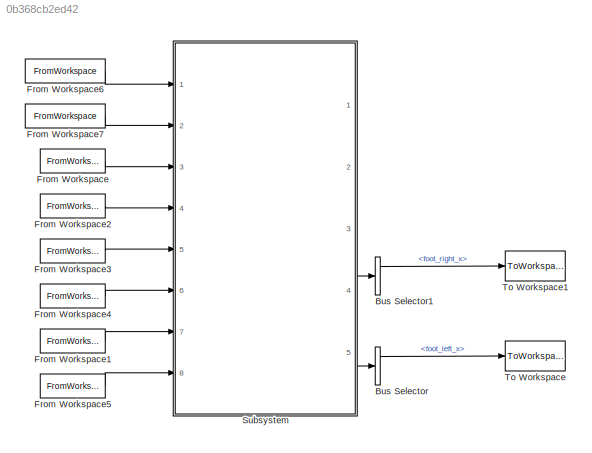
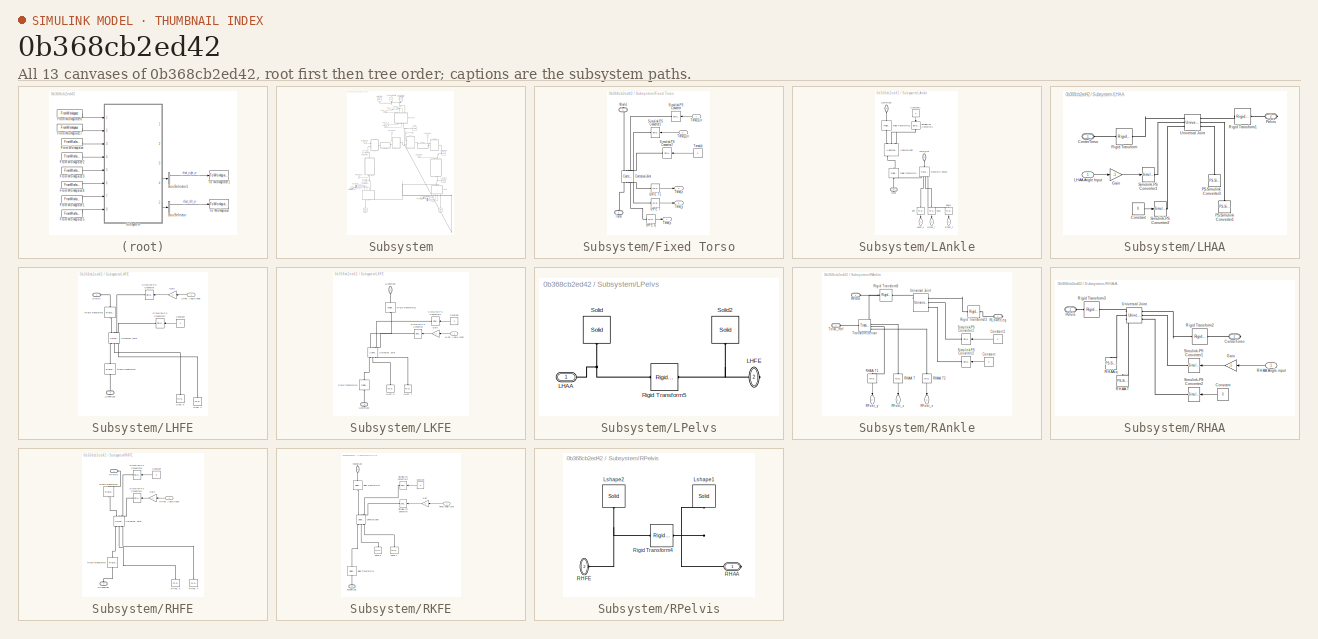
[diagram: thumbnail index - all 13 canvases of the model, root first then tree order]
MODEL slx_0b368cb2ed42
KIND model
CONFIG AbsTol = auto
CONFIG FixedStep = auto
CONFIG MaxStep = auto
CONFIG MinStep = auto
CONFIG RelTol = 1e-3
CONFIG SampleTimeConstraint = Unconstrained
CONFIG Solver = ode23t
CONFIG SolverMode = Auto
CONFIG SolverName = ode23t
CONFIG StartTime = 0.0
CONFIG StopTime = 10
BLOCK [BusSelector] Bus Selector
  OutputSignals = foot_left_x,foot_left_y,foot_left_z
  Ports = [1, 3]
BLOCK [BusSelector] Bus Selector1
  OutputSignals = foot_right_x,foot_right_y,foot_right_z
  Ports = [1, 3]
BLOCK [FromWorkspace] From Workspace
  OutputAfterFinalValue = Holding final value
  SampleTime = 0
  VariableName = [t Q(:,1)]
  ZeroCross = on
BLOCK [FromWorkspace] From Workspace1
  OutputAfterFinalValue = Holding final value
  SampleTime = 0
  VariableName = [t Q(:,5)]
  ZeroCross = on
BLOCK [FromWorkspace] From Workspace2
  OutputAfterFinalValue = Holding final value
  SampleTime = 0
  VariableName = [t Q(:,2)]
  ZeroCross = on
BLOCK [FromWorkspace] From Workspace3
  OutputAfterFinalValue = Holding final value
  SampleTime = 0
  VariableName = [t Q(:,3)]
  ZeroCross = on
BLOCK [FromWorkspace] From Workspace4
  OutputAfterFinalValue = Holding final value
  SampleTime = 0
  VariableName = [t Q(:,4)]
  ZeroCross = on
BLOCK [FromWorkspace] From Workspace5
  OutputAfterFinalValue = Holding final value
  SampleTime = 0
  VariableName = [t Q(:,6)]
  ZeroCross = on
BLOCK [FromWorkspace] From Workspace6
  OutputAfterFinalValue = Holding final value
  SampleTime = 0
  VariableName = [t TORSO(:,1)]
  ZeroCross = on
BLOCK [FromWorkspace] From Workspace7
  OutputAfterFinalValue = Holding final value
  SampleTime = 0
  VariableName = [t TORSO(:,2)]
  ZeroCross = on
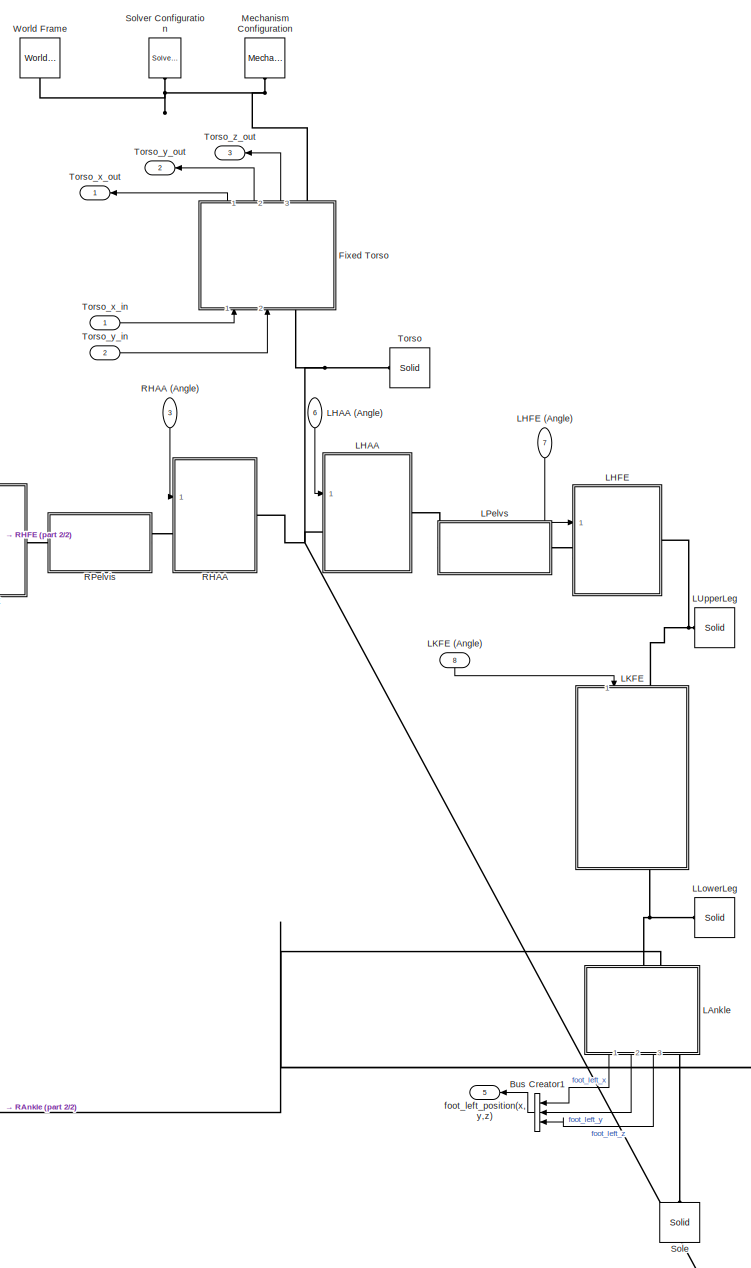
[diagram: Subsystem - part 1/2, center side, full height]
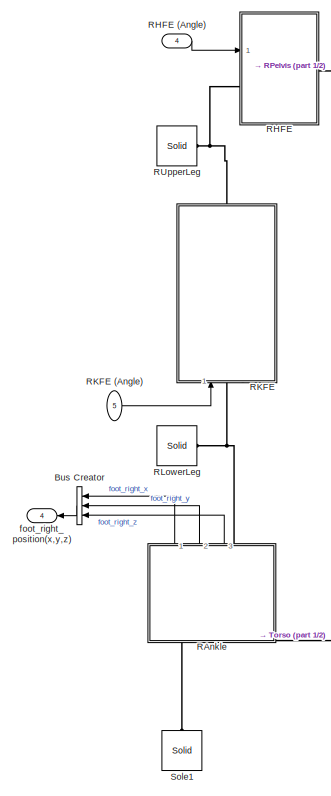
[diagram: Subsystem - part 2/2, middle left region]
BLOCK [SubSystem] Subsystem
  Ports = [8, 5]
  RequestExecContextInheritance = off
  Variant = off
BLOCK [BusCreator] Subsystem/Bus Creator
  DisplayOption = bar
  InheritFromInputs = on
  Inputs = 3
  Ports = [3, 1]
BLOCK [BusCreator] Subsystem/Bus Creator1
  DisplayOption = bar
  InheritFromInputs = on
  Inputs = 3
  Ports = [3, 1]
BLOCK [SubSystem] Subsystem/Fixed Torso
  Ports = [2, 3, 0, 0, 0, 1, 1]
  RequestExecContextInheritance = off
  Variant = off
BLOCK [Reference] Subsystem/Fixed Torso/Cartesian Joint  REF=sm_lib/Joints/Cartesian
Joint
  Ports = [0, 0, 0, 0, 0, 4, 4]
  SourceBlock = sm_lib/Joints/Cartesian\nJoint
  SourceType = Cartesian\nJoint
BLOCK [Reference] Subsystem/Fixed Torso/LHFE T  REF=nesl_utility/PS-Simulink
Converter
  Ports = [0, 1, 0, 0, 0, 1]
  SourceBlock = nesl_utility/PS-Simulink\nConverter
  SourceType = PS-Simulink\nConverter
BLOCK [Reference] Subsystem/Fixed Torso/LHFE T1  REF=nesl_utility/PS-Simulink
Converter
  Ports = [0, 1, 0, 0, 0, 1]
  SourceBlock = nesl_utility/PS-Simulink\nConverter
  SourceType = PS-Simulink\nConverter
BLOCK [Reference] Subsystem/Fixed Torso/LHFE q  REF=nesl_utility/PS-Simulink
Converter
  Ports = [0, 1, 0, 0, 0, 1]
  SourceBlock = nesl_utility/PS-Simulink\nConverter
  SourceType = PS-Simulink\nConverter
BLOCK [Reference] Subsystem/Fixed Torso/Simulink-PS Converter  REF=nesl_utility/Simulink-PS
Converter
  Ports = [1, 0, 0, 0, 0, 0, 1]
  SourceBlock = nesl_utility/Simulink-PS\nConverter
  SourceType = Simulink-PS\nConverter
BLOCK [Reference] Subsystem/Fixed Torso/Simulink-PS Converter1  REF=nesl_utility/Simulink-PS
Converter
  Ports = [1, 0, 0, 0, 0, 0, 1]
  SourceBlock = nesl_utility/Simulink-PS\nConverter
  SourceType = Simulink-PS\nConverter
BLOCK [Reference] Subsystem/Fixed Torso/Simulink-PS Converter2  REF=nesl_utility/Simulink-PS
Converter
  Ports = [1, 0, 0, 0, 0, 0, 1]
  SourceBlock = nesl_utility/Simulink-PS\nConverter
  SourceType = Simulink-PS\nConverter
BLOCK [PMIOPort] Subsystem/Fixed Torso/Torso
  Port = 2
  Side = Left
BLOCK [Constant] Subsystem/Fixed Torso/Torso(z)
  Value = 0
BLOCK [Outport] Subsystem/Fixed Torso/Torso_x
  IconDisplay = Port number
BLOCK [Inport] Subsystem/Fixed Torso/Torso_x_in
  IconDisplay = Port number
BLOCK [Outport] Subsystem/Fixed Torso/Torso_y
  IconDisplay = Port number
  Port = 2
BLOCK [Inport] Subsystem/Fixed Torso/Torso_y_in
  IconDisplay = Port number
  Port = 2
BLOCK [Outport] Subsystem/Fixed Torso/Torso_z
  IconDisplay = Port number
  Port = 3
BLOCK [PMIOPort] Subsystem/Fixed Torso/World
  Port = 1
  Side = Right
BLOCK [SubSystem] Subsystem/LAnkle
  Ports = [0, 3, 0, 0, 0, 2, 1]
  RequestExecContextInheritance = off
  Variant = off
BLOCK [Constant] Subsystem/LAnkle/Constant1
  Value = 0
BLOCK [PMIOPort] Subsystem/LAnkle/LFoot
  Port = 2
  Side = Right
BLOCK [Outport] Subsystem/LAnkle/LFoot_x
  IconDisplay = Port number
BLOCK [PMIOPort] Subsystem/LAnkle/LLowerLeg
  Port = 1
  Side = Left
BLOCK [Outport] Subsystem/LAnkle/RFoot_y
  IconDisplay = Port number
  Port = 2
BLOCK [Outport] Subsystem/LAnkle/RFoot_z
  IconDisplay = Port number
  Port = 3
BLOCK [Reference] Subsystem/LAnkle/Rigid Transform18  REF=sm_lib/Frames and
Transforms/Rigid
Transform
  Ports = [0, 0, 0, 0, 0, 1, 1]
  SourceBlock = sm_lib/Frames and\nTransforms/Rigid\nTransform
  SourceType = Rigid\nTransform
BLOCK [Reference] Subsystem/LAnkle/Rigid Transform9  REF=sm_lib/Frames and
Transforms/Rigid
Transform
  Ports = [0, 0, 0, 0, 0, 1, 1]
  SourceBlock = sm_lib/Frames and\nTransforms/Rigid\nTransform
  SourceType = Rigid\nTransform
BLOCK [Reference] Subsystem/LAnkle/SPs  REF=nesl_utility/PS-Simulink
Converter
  Ports = [0, 1, 0, 0, 0, 1]
  SourceBlock = nesl_utility/PS-Simulink\nConverter
  SourceType = PS-Simulink\nConverter
BLOCK [Reference] Subsystem/LAnkle/Simulink-PS Converter1  REF=nesl_utility/Simulink-PS
Converter
  Ports = [1, 0, 0, 0, 0, 0, 1]
  SourceBlock = nesl_utility/Simulink-PS\nConverter
  SourceType = Simulink-PS\nConverter
BLOCK [Reference] Subsystem/LAnkle/Spss  REF=nesl_utility/PS-Simulink
Converter
  Ports = [0, 1, 0, 0, 0, 1]
  SourceBlock = nesl_utility/PS-Simulink\nConverter
  SourceType = PS-Simulink\nConverter
BLOCK [Reference] Subsystem/LAnkle/Spss1  REF=nesl_utility/PS-Simulink
Converter
  Ports = [0, 1, 0, 0, 0, 1]
  SourceBlock = nesl_utility/PS-Simulink\nConverter
  SourceType = PS-Simulink\nConverter
BLOCK [PMIOPort] Subsystem/LAnkle/Torso_Ref
  Port = 3
  Side = Left
BLOCK [Reference] Subsystem/LAnkle/Transform Sensor  REF=sm_lib/Frames and
Transforms/Transform
Sensor
  Ports = [0, 0, 0, 0, 0, 1, 4]
  SourceBlock = sm_lib/Frames and\nTransforms/Transform\nSensor
  SourceType = Transform\nSensor
BLOCK [Reference] Subsystem/LAnkle/Universal Joint  REF=sm_lib/Joints/Universal
Joint
  Ports = [0, 0, 0, 0, 0, 3, 3]
  SourceBlock = sm_lib/Joints/Universal\nJoint
  SourceType = Universal\nJoint
BLOCK [SubSystem] Subsystem/LHAA
  Ports = [1, 0, 0, 0, 0, 1, 1]
  RequestExecContextInheritance = off
  Variant = off
BLOCK [Inport] Subsystem/LHAA (Angle)
  IconDisplay = Port number
  Port = 6
BLOCK [PMIOPort] Subsystem/LHAA/CenterTorso
  Port = 1
  Side = Left
BLOCK [Constant] Subsystem/LHAA/Constant
  Value = 0
BLOCK [Gain] Subsystem/LHAA/Gain
  Gain = -1
  OutDataTypeStr = Inherit: Inherit via internal rule
  ParamDataTypeStr = Inherit: Inherit via internal rule
  SaturateOnIntegerOverflow = off
BLOCK [Inport] Subsystem/LHAA/LHAA Angle Input 
  IconDisplay = Port number
BLOCK [Reference] Subsystem/LHAA/PS-Simulink Converter1  REF=nesl_utility/PS-Simulink
Converter
  Ports = [0, 1, 0, 0, 0, 1]
  SourceBlock = nesl_utility/PS-Simulink\nConverter
  SourceType = PS-Simulink\nConverter
BLOCK [Reference] Subsystem/LHAA/PS-Simulink Converter3  REF=nesl_utility/PS-Simulink
Converter
  Ports = [0, 1, 0, 0, 0, 1]
  SourceBlock = nesl_utility/PS-Simulink\nConverter
  SourceType = PS-Simulink\nConverter
BLOCK [PMIOPort] Subsystem/LHAA/Pelvis
  Port = 2
  Side = Right
BLOCK [Reference] Subsystem/LHAA/Rigid Transform  REF=sm_lib/Frames and
Transforms/Rigid
Transform
  Ports = [0, 0, 0, 0, 0, 1, 1]
  SourceBlock = sm_lib/Frames and\nTransforms/Rigid\nTransform
  SourceType = Rigid\nTransform
BLOCK [Reference] Subsystem/LHAA/Rigid Transform1  REF=sm_lib/Frames and
Transforms/Rigid
Transform
  Ports = [0, 0, 0, 0, 0, 1, 1]
  SourceBlock = sm_lib/Frames and\nTransforms/Rigid\nTransform
  SourceType = Rigid\nTransform
BLOCK [Reference] Subsystem/LHAA/Simulink-PS Converter1  REF=nesl_utility/Simulink-PS
Converter
  Ports = [1, 0, 0, 0, 0, 0, 1]
  SourceBlock = nesl_utility/Simulink-PS\nConverter
  SourceType = Simulink-PS\nConverter
BLOCK [Reference] Subsystem/LHAA/Simulink-PS Converter2  REF=nesl_utility/Simulink-PS
Converter
  Ports = [1, 0, 0, 0, 0, 0, 1]
  SourceBlock = nesl_utility/Simulink-PS\nConverter
  SourceType = Simulink-PS\nConverter
BLOCK [Reference] Subsystem/LHAA/Universal Joint  REF=sm_lib/Joints/Universal
Joint
  Ports = [0, 0, 0, 0, 0, 3, 3]
  SourceBlock = sm_lib/Joints/Universal\nJoint
  SourceType = Universal\nJoint
BLOCK [SubSystem] Subsystem/LHFE
  Ports = [1, 0, 0, 0, 0, 1, 1]
  RequestExecContextInheritance = off
  Variant = off
BLOCK [Inport] Subsystem/LHFE (Angle)
  IconDisplay = Port number
  Port = 7
BLOCK [Constant] Subsystem/LHFE/Constant
  Value = 0
BLOCK [Gain] Subsystem/LHFE/Gain
  Gain = -1
  OutDataTypeStr = Inherit: Inherit via internal rule
  ParamDataTypeStr = Inherit: Inherit via internal rule
  SaturateOnIntegerOverflow = off
BLOCK [Inport] Subsystem/LHFE/LHFE Angle Input
  IconDisplay = Port number
BLOCK [Reference] Subsystem/LHFE/LHFE T  REF=nesl_utility/PS-Simulink
Converter
  Ports = [0, 1, 0, 0, 0, 1]
  SourceBlock = nesl_utility/PS-Simulink\nConverter
  SourceType = PS-Simulink\nConverter
BLOCK [Reference] Subsystem/LHFE/LHFE q  REF=nesl_utility/PS-Simulink
Converter
  Ports = [0, 1, 0, 0, 0, 1]
  SourceBlock = nesl_utility/PS-Simulink\nConverter
  SourceType = PS-Simulink\nConverter
BLOCK [PMIOPort] Subsystem/LHFE/LPelvis
  Port = 1
  Side = Left
BLOCK [PMIOPort] Subsystem/LHFE/LUpperLeg
  Port = 2
  Side = Right
BLOCK [Reference] Subsystem/LHFE/Rigid Transform8  REF=sm_lib/Frames and
Transforms/Rigid
Transform
  Ports = [0, 0, 0, 0, 0, 1, 1]
  SourceBlock = sm_lib/Frames and\nTransforms/Rigid\nTransform
  SourceType = Rigid\nTransform
BLOCK [Reference] Subsystem/LHFE/Rigid Transform9  REF=sm_lib/Frames and
Transforms/Rigid
Transform
  Ports = [0, 0, 0, 0, 0, 1, 1]
  SourceBlock = sm_lib/Frames and\nTransforms/Rigid\nTransform
  SourceType = Rigid\nTransform
BLOCK [Reference] Subsystem/LHFE/Simulink-PS Converter  REF=nesl_utility/Simulink-PS
Converter
  Ports = [1, 0, 0, 0, 0, 0, 1]
  SourceBlock = nesl_utility/Simulink-PS\nConverter
  SourceType = Simulink-PS\nConverter
BLOCK [Reference] Subsystem/LHFE/Simulink-PS Converter2  REF=nesl_utility/Simulink-PS
Converter
  Ports = [1, 0, 0, 0, 0, 0, 1]
  SourceBlock = nesl_utility/Simulink-PS\nConverter
  SourceType = Simulink-PS\nConverter
BLOCK [Reference] Subsystem/LHFE/Universal Joint  REF=sm_lib/Joints/Universal
Joint
  Ports = [0, 0, 0, 0, 0, 3, 3]
  SourceBlock = sm_lib/Joints/Universal\nJoint
  SourceType = Universal\nJoint
BLOCK [SubSystem] Subsystem/LKFE
  Ports = [1, 0, 0, 0, 0, 1, 1]
  RequestExecContextInheritance = off
  Variant = off
BLOCK [Inport] Subsystem/LKFE (Angle)
  IconDisplay = Port number
  Port = 8
BLOCK [Constant] Subsystem/LKFE/Constant
  Value = 0
BLOCK [Gain] Subsystem/LKFE/Gain
  Gain = -1
  OutDataTypeStr = Inherit: Inherit via internal rule
  ParamDataTypeStr = Inherit: Inherit via internal rule
  SaturateOnIntegerOverflow = off
BLOCK [Reference] Subsystem/LKFE/LHFE T  REF=nesl_utility/PS-Simulink
Converter
  Ports = [0, 1, 0, 0, 0, 1]
  SourceBlock = nesl_utility/PS-Simulink\nConverter
  SourceType = PS-Simulink\nConverter
BLOCK [Reference] Subsystem/LKFE/LHFE q  REF=nesl_utility/PS-Simulink
Converter
  Ports = [0, 1, 0, 0, 0, 1]
  SourceBlock = nesl_utility/PS-Simulink\nConverter
  SourceType = PS-Simulink\nConverter
BLOCK [Inport] Subsystem/LKFE/LKFE Angle Input 
  IconDisplay = Port number
BLOCK [PMIOPort] Subsystem/LKFE/LLowerLeg
  Port = 2
  Side = Right
BLOCK [PMIOPort] Subsystem/LKFE/LUpperLeg
  Port = 1
  Side = Left
BLOCK [Reference] Subsystem/LKFE/Rigid Transform12  REF=sm_lib/Frames and
Transforms/Rigid
Transform
  Ports = [0, 0, 0, 0, 0, 1, 1]
  SourceBlock = sm_lib/Frames and\nTransforms/Rigid\nTransform
  SourceType = Rigid\nTransform
BLOCK [Reference] Subsystem/LKFE/Rigid Transform13  REF=sm_lib/Frames and
Transforms/Rigid
Transform
  Ports = [0, 0, 0, 0, 0, 1, 1]
  SourceBlock = sm_lib/Frames and\nTransforms/Rigid\nTransform
  SourceType = Rigid\nTransform
BLOCK [Reference] Subsystem/LKFE/Simulink-PS Converter  REF=nesl_utility/Simulink-PS
Converter
  Ports = [1, 0, 0, 0, 0, 0, 1]
  SourceBlock = nesl_utility/Simulink-PS\nConverter
  SourceType = Simulink-PS\nConverter
BLOCK [Reference] Subsystem/LKFE/Simulink-PS Converter2  REF=nesl_utility/Simulink-PS
Converter
  Ports = [1, 0, 0, 0, 0, 0, 1]
  SourceBlock = nesl_utility/Simulink-PS\nConverter
  SourceType = Simulink-PS\nConverter
BLOCK [Reference] Subsystem/LKFE/Universal Joint  REF=sm_lib/Joints/Universal
Joint
  Ports = [0, 0, 0, 0, 0, 3, 3]
  SourceBlock = sm_lib/Joints/Universal\nJoint
  SourceType = Universal\nJoint
BLOCK [Reference] Subsystem/LLowerLeg  REF=sm_lib/Body Elements/Solid
  Ports = [0, 0, 0, 0, 0, 0, 1]
  SourceBlock = sm_lib/Body Elements/Solid
  SourceType = Solid
BLOCK [SubSystem] Subsystem/LPelvs
  Ports = [0, 0, 0, 0, 0, 1, 1]
  RequestExecContextInheritance = off
  Variant = off
BLOCK [PMIOPort] Subsystem/LPelvs/LHAA
  Port = 1
  Side = Left
BLOCK [PMIOPort] Subsystem/LPelvs/LHFE
  Port = 2
  Side = Right
BLOCK [Reference] Subsystem/LPelvs/Rigid Transform5  REF=sm_lib/Frames and
Transforms/Rigid
Transform
  Ports = [0, 0, 0, 0, 0, 1, 1]
  SourceBlock = sm_lib/Frames and\nTransforms/Rigid\nTransform
  SourceType = Rigid\nTransform
BLOCK [Reference] Subsystem/LPelvs/Solid  REF=sm_lib/Body Elements/Solid
  Ports = [0, 0, 0, 0, 0, 0, 1]
  SourceBlock = sm_lib/Body Elements/Solid
  SourceType = Solid
BLOCK [Reference] Subsystem/LPelvs/Solid2  REF=sm_lib/Body Elements/Solid
  Ports = [0, 0, 0, 0, 0, 0, 1]
  SourceBlock = sm_lib/Body Elements/Solid
  SourceType = Solid
BLOCK [Reference] Subsystem/LUpperLeg  REF=sm_lib/Body Elements/Solid
  Ports = [0, 0, 0, 0, 0, 0, 1]
  SourceBlock = sm_lib/Body Elements/Solid
  SourceType = Solid
BLOCK [Reference] Subsystem/Mechanism Configuration  REF=sm_lib/Utilities/Mechanism
Configuration
  Ports = [0, 0, 0, 0, 0, 0, 1]
  SourceBlock = sm_lib/Utilities/Mechanism\nConfiguration
  SourceType = Mechanism\nConfiguration
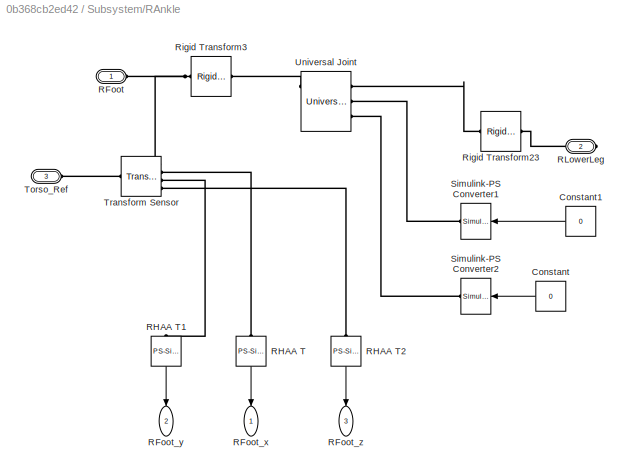
BLOCK [SubSystem] Subsystem/RAnkle
  Ports = [0, 3, 0, 0, 0, 2, 1]
  RequestExecContextInheritance = off
  Variant = off
BLOCK [Constant] Subsystem/RAnkle/Constant
  Value = 0
BLOCK [Constant] Subsystem/RAnkle/Constant1
  Value = 0
BLOCK [PMIOPort] Subsystem/RAnkle/RFoot
  Port = 1
  Side = Left
BLOCK [Outport] Subsystem/RAnkle/RFoot_x
  IconDisplay = Port number
BLOCK [Outport] Subsystem/RAnkle/RFoot_y
  IconDisplay = Port number
  Port = 2
BLOCK [Outport] Subsystem/RAnkle/RFoot_z
  IconDisplay = Port number
  Port = 3
BLOCK [Reference] Subsystem/RAnkle/RHAA T  REF=nesl_utility/PS-Simulink
Converter
  Ports = [0, 1, 0, 0, 0, 1]
  SourceBlock = nesl_utility/PS-Simulink\nConverter
  SourceType = PS-Simulink\nConverter
BLOCK [Reference] Subsystem/RAnkle/RHAA T1  REF=nesl_utility/PS-Simulink
Converter
  Ports = [0, 1, 0, 0, 0, 1]
  SourceBlock = nesl_utility/PS-Simulink\nConverter
  SourceType = PS-Simulink\nConverter
BLOCK [Reference] Subsystem/RAnkle/RHAA T2  REF=nesl_utility/PS-Simulink
Converter
  Ports = [0, 1, 0, 0, 0, 1]
  SourceBlock = nesl_utility/PS-Simulink\nConverter
  SourceType = PS-Simulink\nConverter
BLOCK [PMIOPort] Subsystem/RAnkle/RLowerLeg
  Port = 2
  Side = Right
BLOCK [Reference] Subsystem/RAnkle/Rigid Transform23  REF=sm_lib/Frames and
Transforms/Rigid
Transform
  Ports = [0, 0, 0, 0, 0, 1, 1]
  SourceBlock = sm_lib/Frames and\nTransforms/Rigid\nTransform
  SourceType = Rigid\nTransform
BLOCK [Reference] Subsystem/RAnkle/Rigid Transform3  REF=sm_lib/Frames and
Transforms/Rigid
Transform
  Ports = [0, 0, 0, 0, 0, 1, 1]
  SourceBlock = sm_lib/Frames and\nTransforms/Rigid\nTransform
  SourceType = Rigid\nTransform
BLOCK [Reference] Subsystem/RAnkle/Simulink-PS Converter1  REF=nesl_utility/Simulink-PS
Converter
  Ports = [1, 0, 0, 0, 0, 0, 1]
  SourceBlock = nesl_utility/Simulink-PS\nConverter
  SourceType = Simulink-PS\nConverter
BLOCK [Reference] Subsystem/RAnkle/Simulink-PS Converter2  REF=nesl_utility/Simulink-PS
Converter
  Ports = [1, 0, 0, 0, 0, 0, 1]
  SourceBlock = nesl_utility/Simulink-PS\nConverter
  SourceType = Simulink-PS\nConverter
BLOCK [PMIOPort] Subsystem/RAnkle/Torso_Ref
  Port = 3
  Side = Left
BLOCK [Reference] Subsystem/RAnkle/Transform Sensor  REF=sm_lib/Frames and
Transforms/Transform
Sensor
  Ports = [0, 0, 0, 0, 0, 1, 4]
  SourceBlock = sm_lib/Frames and\nTransforms/Transform\nSensor
  SourceType = Transform\nSensor
BLOCK [Reference] Subsystem/RAnkle/Universal Joint  REF=sm_lib/Joints/Universal
Joint
  Ports = [0, 0, 0, 0, 0, 3, 3]
  SourceBlock = sm_lib/Joints/Universal\nJoint
  SourceType = Universal\nJoint
BLOCK [SubSystem] Subsystem/RHAA
  Ports = [1, 0, 0, 0, 0, 1, 1]
  RequestExecContextInheritance = off
  Variant = off
BLOCK [Inport] Subsystem/RHAA (Angle)
  IconDisplay = Port number
  Port = 3
BLOCK [PMIOPort] Subsystem/RHAA/CenterTorso
  Port = 2
  Side = Right
BLOCK [Constant] Subsystem/RHAA/Constant
  Value = 0
BLOCK [Gain] Subsystem/RHAA/Gain
  Gain = -1
  OutDataTypeStr = Inherit: Inherit via internal rule
  ParamDataTypeStr = Inherit: Inherit via internal rule
  SaturateOnIntegerOverflow = off
BLOCK [PMIOPort] Subsystem/RHAA/Pelvis
  Port = 1
  Side = Left
BLOCK [Inport] Subsystem/RHAA/RHAA Angle input
  IconDisplay = Port number
BLOCK [Reference] Subsystem/RHAA/RHAA T  REF=nesl_utility/PS-Simulink
Converter
  Ports = [0, 1, 0, 0, 0, 1]
  SourceBlock = nesl_utility/PS-Simulink\nConverter
  SourceType = PS-Simulink\nConverter
BLOCK [Reference] Subsystem/RHAA/RHAA q  REF=nesl_utility/PS-Simulink
Converter
  Ports = [0, 1, 0, 0, 0, 1]
  SourceBlock = nesl_utility/PS-Simulink\nConverter
  SourceType = PS-Simulink\nConverter
BLOCK [Reference] Subsystem/RHAA/Rigid Transform2  REF=sm_lib/Frames and
Transforms/Rigid
Transform
  Ports = [0, 0, 0, 0, 0, 1, 1]
  SourceBlock = sm_lib/Frames and\nTransforms/Rigid\nTransform
  SourceType = Rigid\nTransform
BLOCK [Reference] Subsystem/RHAA/Rigid Transform3  REF=sm_lib/Frames and
Transforms/Rigid
Transform
  Ports = [0, 0, 0, 0, 0, 1, 1]
  SourceBlock = sm_lib/Frames and\nTransforms/Rigid\nTransform
  SourceType = Rigid\nTransform
BLOCK [Reference] Subsystem/RHAA/Simulink-PS Converter1  REF=nesl_utility/Simulink-PS
Converter
  Ports = [1, 0, 0, 0, 0, 0, 1]
  SourceBlock = nesl_utility/Simulink-PS\nConverter
  SourceType = Simulink-PS\nConverter
BLOCK [Reference] Subsystem/RHAA/Simulink-PS Converter2  REF=nesl_utility/Simulink-PS
Converter
  Ports = [1, 0, 0, 0, 0, 0, 1]
  SourceBlock = nesl_utility/Simulink-PS\nConverter
  SourceType = Simulink-PS\nConverter
BLOCK [Reference] Subsystem/RHAA/Universal Joint  REF=sm_lib/Joints/Universal
Joint
  Ports = [0, 0, 0, 0, 0, 3, 3]
  SourceBlock = sm_lib/Joints/Universal\nJoint
  SourceType = Universal\nJoint
BLOCK [SubSystem] Subsystem/RHFE
  Ports = [1, 0, 0, 0, 0, 1, 1]
  RequestExecContextInheritance = off
  Variant = off
BLOCK [Inport] Subsystem/RHFE (Angle)
  IconDisplay = Port number
  Port = 4
BLOCK [Constant] Subsystem/RHFE/Constant
  Value = 0
BLOCK [Gain] Subsystem/RHFE/Gain
  Gain = -1
  OutDataTypeStr = Inherit: Inherit via internal rule
  ParamDataTypeStr = Inherit: Inherit via internal rule
  SaturateOnIntegerOverflow = off
BLOCK [Inport] Subsystem/RHFE/RHFE Angle input
  IconDisplay = Port number
BLOCK [Reference] Subsystem/RHFE/RHFE T  REF=nesl_utility/PS-Simulink
Converter
  Ports = [0, 1, 0, 0, 0, 1]
  SourceBlock = nesl_utility/PS-Simulink\nConverter
  SourceType = PS-Simulink\nConverter
BLOCK [Reference] Subsystem/RHFE/RHFE q  REF=nesl_utility/PS-Simulink
Converter
  Ports = [0, 1, 0, 0, 0, 1]
  SourceBlock = nesl_utility/PS-Simulink\nConverter
  SourceType = PS-Simulink\nConverter
BLOCK [PMIOPort] Subsystem/RHFE/RPelvis
  Port = 1
  Side = Right
BLOCK [PMIOPort] Subsystem/RHFE/RUpperLeg
  Port = 2
  Side = Left
BLOCK [Reference] Subsystem/RHFE/Rigid Transform8  REF=sm_lib/Frames and
Transforms/Rigid
Transform
  Ports = [0, 0, 0, 0, 0, 1, 1]
  SourceBlock = sm_lib/Frames and\nTransforms/Rigid\nTransform
  SourceType = Rigid\nTransform
BLOCK [Reference] Subsystem/RHFE/Rigid Transform9  REF=sm_lib/Frames and
Transforms/Rigid
Transform
  Ports = [0, 0, 0, 0, 0, 1, 1]
  SourceBlock = sm_lib/Frames and\nTransforms/Rigid\nTransform
  SourceType = Rigid\nTransform
BLOCK [Reference] Subsystem/RHFE/Simulink-PS Converter1  REF=nesl_utility/Simulink-PS
Converter
  Ports = [1, 0, 0, 0, 0, 0, 1]
  SourceBlock = nesl_utility/Simulink-PS\nConverter
  SourceType = Simulink-PS\nConverter
BLOCK [Reference] Subsystem/RHFE/Simulink-PS Converter2  REF=nesl_utility/Simulink-PS
Converter
  Ports = [1, 0, 0, 0, 0, 0, 1]
  SourceBlock = nesl_utility/Simulink-PS\nConverter
  SourceType = Simulink-PS\nConverter
BLOCK [Reference] Subsystem/RHFE/Universal Joint  REF=sm_lib/Joints/Universal
Joint
  Ports = [0, 0, 0, 0, 0, 3, 3]
  SourceBlock = sm_lib/Joints/Universal\nJoint
  SourceType = Universal\nJoint
BLOCK [SubSystem] Subsystem/RKFE
  Ports = [1, 0, 0, 0, 0, 1, 1]
  RequestExecContextInheritance = off
  Variant = off
BLOCK [Inport] Subsystem/RKFE (Angle)
  IconDisplay = Port number
  Port = 5
BLOCK [Constant] Subsystem/RKFE/Constant
  Value = 0
BLOCK [Gain] Subsystem/RKFE/Gain
  Gain = -1
  OutDataTypeStr = Inherit: Inherit via internal rule
  ParamDataTypeStr = Inherit: Inherit via internal rule
  SaturateOnIntegerOverflow = off
BLOCK [Inport] Subsystem/RKFE/RKFE Angle Input 
  IconDisplay = Port number
BLOCK [Reference] Subsystem/RKFE/RKFE T  REF=nesl_utility/PS-Simulink
Converter
  Ports = [0, 1, 0, 0, 0, 1]
  SourceBlock = nesl_utility/PS-Simulink\nConverter
  SourceType = PS-Simulink\nConverter
BLOCK [Reference] Subsystem/RKFE/RKFE q  REF=nesl_utility/PS-Simulink
Converter
  Ports = [0, 1, 0, 0, 0, 1]
  SourceBlock = nesl_utility/PS-Simulink\nConverter
  SourceType = PS-Simulink\nConverter
BLOCK [PMIOPort] Subsystem/RKFE/RLowerLeg
  Port = 2
  Side = Left
BLOCK [PMIOPort] Subsystem/RKFE/RUpperLeg
  Port = 1
  Side = Right
BLOCK [Reference] Subsystem/RKFE/Rigid Transform10  REF=sm_lib/Frames and
Transforms/Rigid
Transform
  Ports = [0, 0, 0, 0, 0, 1, 1]
  SourceBlock = sm_lib/Frames and\nTransforms/Rigid\nTransform
  SourceType = Rigid\nTransform
BLOCK [Reference] Subsystem/RKFE/Rigid Transform11  REF=sm_lib/Frames and
Transforms/Rigid
Transform
  Ports = [0, 0, 0, 0, 0, 1, 1]
  SourceBlock = sm_lib/Frames and\nTransforms/Rigid\nTransform
  SourceType = Rigid\nTransform
BLOCK [Reference] Subsystem/RKFE/Simulink-PS Converter  REF=nesl_utility/Simulink-PS
Converter
  Ports = [1, 0, 0, 0, 0, 0, 1]
  SourceBlock = nesl_utility/Simulink-PS\nConverter
  SourceType = Simulink-PS\nConverter
BLOCK [Reference] Subsystem/RKFE/Simulink-PS Converter2  REF=nesl_utility/Simulink-PS
Converter
  Ports = [1, 0, 0, 0, 0, 0, 1]
  SourceBlock = nesl_utility/Simulink-PS\nConverter
  SourceType = Simulink-PS\nConverter
BLOCK [Reference] Subsystem/RKFE/Universal Joint  REF=sm_lib/Joints/Universal
Joint
  Ports = [0, 0, 0, 0, 0, 3, 3]
  SourceBlock = sm_lib/Joints/Universal\nJoint
  SourceType = Universal\nJoint
BLOCK [Reference] Subsystem/RLowerLeg  REF=sm_lib/Body Elements/Solid
  Ports = [0, 0, 0, 0, 0, 0, 1]
  SourceBlock = sm_lib/Body Elements/Solid
  SourceType = Solid
BLOCK [SubSystem] Subsystem/RPelvis
  Ports = [0, 0, 0, 0, 0, 1, 1]
  RequestExecContextInheritance = off
  Variant = off
BLOCK [Reference] Subsystem/RPelvis/Lshape1  REF=sm_lib/Body Elements/Solid
  Ports = [0, 0, 0, 0, 0, 0, 1]
  SourceBlock = sm_lib/Body Elements/Solid
  SourceType = Solid
BLOCK [Reference] Subsystem/RPelvis/Lshape2  REF=sm_lib/Body Elements/Solid
  Ports = [0, 0, 0, 0, 0, 0, 1]
  SourceBlock = sm_lib/Body Elements/Solid
  SourceType = Solid
BLOCK [PMIOPort] Subsystem/RPelvis/RHAA
  Port = 1
  Side = Right
BLOCK [PMIOPort] Subsystem/RPelvis/RHFE
  Port = 2
  Side = Left
BLOCK [Reference] Subsystem/RPelvis/Rigid Transform4  REF=sm_lib/Frames and
Transforms/Rigid
Transform
  Ports = [0, 0, 0, 0, 0, 1, 1]
  SourceBlock = sm_lib/Frames and\nTransforms/Rigid\nTransform
  SourceType = Rigid\nTransform
BLOCK [Reference] Subsystem/RUpperLeg  REF=sm_lib/Body Elements/Solid
  Ports = [0, 0, 0, 0, 0, 0, 1]
  SourceBlock = sm_lib/Body Elements/Solid
  SourceType = Solid
BLOCK [Reference] Subsystem/Sole  REF=sm_lib/Body Elements/Solid
  Ports = [0, 0, 0, 0, 0, 0, 1]
  SourceBlock = sm_lib/Body Elements/Solid
  SourceType = Solid
BLOCK [Reference] Subsystem/Sole1  REF=sm_lib/Body Elements/Solid
  Ports = [0, 0, 0, 0, 0, 0, 1]
  SourceBlock = sm_lib/Body Elements/Solid
  SourceType = Solid
BLOCK [Reference] Subsystem/Solver Configuration  REF=nesl_utility/Solver
Configuration
  Ports = [0, 0, 0, 0, 0, 0, 1]
  SourceBlock = nesl_utility/Solver\nConfiguration
  SourceType = Solver\nConfiguration
BLOCK [Reference] Subsystem/Torso  REF=sm_lib/Body Elements/Solid
  Ports = [0, 0, 0, 0, 0, 0, 1]
  SourceBlock = sm_lib/Body Elements/Solid
  SourceType = Solid
BLOCK [Inport] Subsystem/Torso_x_in
  IconDisplay = Port number
BLOCK [Outport] Subsystem/Torso_x_out
  IconDisplay = Port number
BLOCK [Inport] Subsystem/Torso_y_in
  IconDisplay = Port number
  Port = 2
BLOCK [Outport] Subsystem/Torso_y_out
  IconDisplay = Port number
  Port = 2
BLOCK [Outport] Subsystem/Torso_z_out
  IconDisplay = Port number
  Port = 3
BLOCK [Reference] Subsystem/World Frame  REF=sm_lib/Frames and
Transforms/World Frame
  Ports = [0, 0, 0, 0, 0, 0, 1]
  SourceBlock = sm_lib/Frames and\nTransforms/World Frame
  SourceType = World Frame
BLOCK [Outport] Subsystem/foot_left_position(x,y,z)
  IconDisplay = Port number
  Port = 5
BLOCK [Outport] Subsystem/foot_right_position(x,y,z)
  IconDisplay = Port number
  Port = 4
BLOCK [ToWorkspace] To Workspace
  FixptAsFi = on
  MaxDataPoints = inf
  Ports = [1]
  SampleTime = -1
  Save2DSignal = 3-D array (concatenate along third dimension)
  VariableName = left_foot_out
BLOCK [ToWorkspace] To Workspace1
  FixptAsFi = on
  MaxDataPoints = inf
  Ports = [1]
  SampleTime = -1
  Save2DSignal = 3-D array (concatenate along third dimension)
  VariableName = right_foot_out
LINE Bus Selector1:1 -> To Workspace1:1
LINE Bus Selector:1 -> To Workspace:1
LINE From Workspace1:1 -> Subsystem:7
LINE From Workspace2:1 -> Subsystem:4
LINE From Workspace3:1 -> Subsystem:5
LINE From Workspace4:1 -> Subsystem:6
LINE From Workspace5:1 -> Subsystem:8
LINE From Workspace6:1 -> Subsystem:1
LINE From Workspace7:1 -> Subsystem:2
LINE From Workspace:1 -> Subsystem:3
LINE Subsystem/Bus Creator1:1 -> Subsystem/foot_left_position(x,y,z):1
LINE Subsystem/Bus Creator:1 -> Subsystem/foot_right_position(x,y,z):1
LINE Subsystem/Fixed Torso/LHFE T1:1 -> Subsystem/Fixed Torso/Torso_z:1
LINE Subsystem/Fixed Torso/LHFE T:1 -> Subsystem/Fixed Torso/Torso_y:1
LINE Subsystem/Fixed Torso/LHFE q:1 -> Subsystem/Fixed Torso/Torso_x:1
LINE Subsystem/Fixed Torso/Torso(z):1 -> Subsystem/Fixed Torso/Simulink-PS Converter2:1
LINE Subsystem/Fixed Torso/Torso_x_in:1 -> Subsystem/Fixed Torso/Simulink-PS Converter:1
LINE Subsystem/Fixed Torso/Torso_y_in:1 -> Subsystem/Fixed Torso/Simulink-PS Converter1:1
LINE Subsystem/Fixed Torso:1 -> Subsystem/Torso_x_out:1
LINE Subsystem/Fixed Torso:2 -> Subsystem/Torso_y_out:1
LINE Subsystem/Fixed Torso:3 -> Subsystem/Torso_z_out:1
LINE Subsystem/LAnkle/Constant1:1 -> Subsystem/LAnkle/Simulink-PS Converter1:1
LINE Subsystem/LAnkle/SPs:1 -> Subsystem/LAnkle/LFoot_x:1
LINE Subsystem/LAnkle/Spss1:1 -> Subsystem/LAnkle/RFoot_z:1
LINE Subsystem/LAnkle/Spss:1 -> Subsystem/LAnkle/RFoot_y:1
LINE Subsystem/LAnkle:1 -> Subsystem/Bus Creator1:1
LINE Subsystem/LAnkle:2 -> Subsystem/Bus Creator1:2
LINE Subsystem/LAnkle:3 -> Subsystem/Bus Creator1:3
LINE Subsystem/LHAA (Angle):1 -> Subsystem/LHAA:1
LINE Subsystem/LHAA/Constant:1 -> Subsystem/LHAA/Simulink-PS Converter2:1
LINE Subsystem/LHAA/Gain:1 -> Subsystem/LHAA/Simulink-PS Converter1:1
LINE Subsystem/LHAA/LHAA Angle Input :1 -> Subsystem/LHAA/Gain:1
LINE Subsystem/LHFE (Angle):1 -> Subsystem/LHFE:1
LINE Subsystem/LHFE/Constant:1 -> Subsystem/LHFE/Simulink-PS Converter2:1
LINE Subsystem/LHFE/Gain:1 -> Subsystem/LHFE/Simulink-PS Converter:1
LINE Subsystem/LHFE/LHFE Angle Input:1 -> Subsystem/LHFE/Gain:1
LINE Subsystem/LKFE (Angle):1 -> Subsystem/LKFE:1
LINE Subsystem/LKFE/Constant:1 -> Subsystem/LKFE/Simulink-PS Converter2:1
LINE Subsystem/LKFE/Gain:1 -> Subsystem/LKFE/Simulink-PS Converter:1
LINE Subsystem/LKFE/LKFE Angle Input :1 -> Subsystem/LKFE/Gain:1
LINE Subsystem/RAnkle/Constant1:1 -> Subsystem/RAnkle/Simulink-PS Converter1:1
LINE Subsystem/RAnkle/Constant:1 -> Subsystem/RAnkle/Simulink-PS Converter2:1
LINE Subsystem/RAnkle/RHAA T1:1 -> Subsystem/RAnkle/RFoot_y:1
LINE Subsystem/RAnkle/RHAA T2:1 -> Subsystem/RAnkle/RFoot_z:1
LINE Subsystem/RAnkle/RHAA T:1 -> Subsystem/RAnkle/RFoot_x:1
LINE Subsystem/RAnkle:1 -> Subsystem/Bus Creator:1
LINE Subsystem/RAnkle:2 -> Subsystem/Bus Creator:2
LINE Subsystem/RAnkle:3 -> Subsystem/Bus Creator:3
LINE Subsystem/RHAA (Angle):1 -> Subsystem/RHAA:1
LINE Subsystem/RHAA/Constant:1 -> Subsystem/RHAA/Simulink-PS Converter2:1
LINE Subsystem/RHAA/Gain:1 -> Subsystem/RHAA/Simulink-PS Converter1:1
LINE Subsystem/RHAA/RHAA Angle input:1 -> Subsystem/RHAA/Gain:1
LINE Subsystem/RHFE (Angle):1 -> Subsystem/RHFE:1
LINE Subsystem/RHFE/Constant:1 -> Subsystem/RHFE/Simulink-PS Converter2:1
LINE Subsystem/RHFE/Gain:1 -> Subsystem/RHFE/Simulink-PS Converter1:1
LINE Subsystem/RHFE/RHFE Angle input:1 -> Subsystem/RHFE/Gain:1
LINE Subsystem/RKFE (Angle):1 -> Subsystem/RKFE:1
LINE Subsystem/RKFE/Constant:1 -> Subsystem/RKFE/Simulink-PS Converter2:1
LINE Subsystem/RKFE/Gain:1 -> Subsystem/RKFE/Simulink-PS Converter:1
LINE Subsystem/RKFE/RKFE Angle Input :1 -> Subsystem/RKFE/Gain:1
LINE Subsystem/Torso_x_in:1 -> Subsystem/Fixed Torso:1
LINE Subsystem/Torso_y_in:1 -> Subsystem/Fixed Torso:2
LINE Subsystem:4 -> Bus Selector1:1
LINE Subsystem:5 -> Bus Selector:1
PLINE Subsystem/Fixed Torso/Cartesian Joint:LConn1 -- Subsystem/Fixed Torso/World:RConn1
PLINE Subsystem/Fixed Torso/Cartesian Joint:LConn2 -- Subsystem/Fixed Torso/Simulink-PS Converter:RConn1
PLINE Subsystem/Fixed Torso/Cartesian Joint:LConn3 -- Subsystem/Fixed Torso/Simulink-PS Converter1:RConn1
PLINE Subsystem/Fixed Torso/Cartesian Joint:LConn4 -- Subsystem/Fixed Torso/Simulink-PS Converter2:RConn1
PLINE Subsystem/Fixed Torso/Cartesian Joint:RConn1 -- Subsystem/Fixed Torso/Torso:RConn1
PLINE Subsystem/Fixed Torso/Cartesian Joint:RConn2 -- Subsystem/Fixed Torso/LHFE q:LConn1
PLINE Subsystem/Fixed Torso/Cartesian Joint:RConn3 -- Subsystem/Fixed Torso/LHFE T:LConn1
PLINE Subsystem/Fixed Torso/Cartesian Joint:RConn4 -- Subsystem/Fixed Torso/LHFE T1:LConn1
PNET net1: Subsystem/Fixed Torso:LConn1 -- Subsystem/LAnkle:LConn2 -- Subsystem/LHAA:LConn1 -- Subsystem/RAnkle:LConn2 -- Subsystem/RHAA:RConn1 -- Subsystem/Torso:RConn1
PNET net2: Subsystem/Fixed Torso:RConn1 -- Subsystem/Mechanism Configuration:RConn1 -- Subsystem/Solver Configuration:RConn1 -- Subsystem/World Frame:RConn1
PNET net3: Subsystem/LAnkle/LFoot:RConn1 -- Subsystem/LAnkle/Rigid Transform9:RConn1 -- Subsystem/LAnkle/Transform Sensor:RConn1
PLINE Subsystem/LAnkle/LLowerLeg:RConn1 -- Subsystem/LAnkle/Rigid Transform18:LConn1
PLINE Subsystem/LAnkle/Rigid Transform18:RConn1 -- Subsystem/LAnkle/Universal Joint:LConn1
PLINE Subsystem/LAnkle/Rigid Transform9:LConn1 -- Subsystem/LAnkle/Universal Joint:RConn1
PLINE Subsystem/LAnkle/SPs:LConn1 -- Subsystem/LAnkle/Transform Sensor:RConn2
PNET net4: Subsystem/LAnkle/Simulink-PS Converter1:RConn1 -- Subsystem/LAnkle/Universal Joint:LConn2 -- Subsystem/LAnkle/Universal Joint:LConn3
PLINE Subsystem/LAnkle/Spss1:LConn1 -- Subsystem/LAnkle/Transform Sensor:RConn4
PLINE Subsystem/LAnkle/Spss:LConn1 -- Subsystem/LAnkle/Transform Sensor:RConn3
PLINE Subsystem/LAnkle/Torso_Ref:RConn1 -- Subsystem/LAnkle/Transform Sensor:LConn1
PNET net5: Subsystem/LAnkle:LConn1 -- Subsystem/LKFE:RConn1 -- Subsystem/LLowerLeg:RConn1
PLINE Subsystem/LAnkle:RConn1 -- Subsystem/Sole:RConn1
PLINE Subsystem/LHAA/CenterTorso:RConn1 -- Subsystem/LHAA/Rigid Transform:LConn1
PLINE Subsystem/LHAA/PS-Simulink Converter1:LConn1 -- Subsystem/LHAA/Universal Joint:RConn2
PLINE Subsystem/LHAA/PS-Simulink Converter3:LConn1 -- Subsystem/LHAA/Universal Joint:RConn3
PLINE Subsystem/LHAA/Pelvis:RConn1 -- Subsystem/LHAA/Rigid Transform1:RConn1
PLINE Subsystem/LHAA/Rigid Transform1:LConn1 -- Subsystem/LHAA/Universal Joint:RConn1
PLINE Subsystem/LHAA/Rigid Transform:RConn1 -- Subsystem/LHAA/Universal Joint:LConn1
PLINE Subsystem/LHAA/Simulink-PS Converter1:RConn1 -- Subsystem/LHAA/Universal Joint:LConn2
PLINE Subsystem/LHAA/Simulink-PS Converter2:RConn1 -- Subsystem/LHAA/Universal Joint:LConn3
PLINE Subsystem/LHAA:RConn1 -- Subsystem/LPelvs:LConn1
PLINE Subsystem/LHFE/LHFE T:LConn1 -- Subsystem/LHFE/Universal Joint:RConn3
PLINE Subsystem/LHFE/LHFE q:LConn1 -- Subsystem/LHFE/Universal Joint:RConn2
PLINE Subsystem/LHFE/LPelvis:RConn1 -- Subsystem/LHFE/Rigid Transform8:LConn1
PLINE Subsystem/LHFE/LUpperLeg:RConn1 -- Subsystem/LHFE/Rigid Transform9:RConn1
PLINE Subsystem/LHFE/Rigid Transform8:RConn1 -- Subsystem/LHFE/Universal Joint:LConn1
PLINE Subsystem/LHFE/Rigid Transform9:LConn1 -- Subsystem/LHFE/Universal Joint:RConn1
PLINE Subsystem/LHFE/Simulink-PS Converter2:RConn1 -- Subsystem/LHFE/Universal Joint:LConn2
PLINE Subsystem/LHFE/Simulink-PS Converter:RConn1 -- Subsystem/LHFE/Universal Joint:LConn3
PLINE Subsystem/LHFE:LConn1 -- Subsystem/LPelvs:RConn1
PNET net6: Subsystem/LHFE:RConn1 -- Subsystem/LKFE:LConn1 -- Subsystem/LUpperLeg:RConn1
PLINE Subsystem/LKFE/LHFE T:LConn1 -- Subsystem/LKFE/Universal Joint:RConn3
PLINE Subsystem/LKFE/LHFE q:LConn1 -- Subsystem/LKFE/Universal Joint:RConn2
PLINE Subsystem/LKFE/LLowerLeg:RConn1 -- Subsystem/LKFE/Rigid Transform13:RConn1
PLINE Subsystem/LKFE/LUpperLeg:RConn1 -- Subsystem/LKFE/Rigid Transform12:LConn1
PLINE Subsystem/LKFE/Rigid Transform12:RConn1 -- Subsystem/LKFE/Universal Joint:LConn1
PLINE Subsystem/LKFE/Rigid Transform13:LConn1 -- Subsystem/LKFE/Universal Joint:RConn1
PLINE Subsystem/LKFE/Simulink-PS Converter2:RConn1 -- Subsystem/LKFE/Universal Joint:LConn2
PLINE Subsystem/LKFE/Simulink-PS Converter:RConn1 -- Subsystem/LKFE/Universal Joint:LConn3
PNET net7: Subsystem/LPelvs/LHAA:RConn1 -- Subsystem/LPelvs/Rigid Transform5:LConn1 -- Subsystem/LPelvs/Solid:RConn1
PNET net8: Subsystem/LPelvs/LHFE:RConn1 -- Subsystem/LPelvs/Rigid Transform5:RConn1 -- Subsystem/LPelvs/Solid2:RConn1
PNET net9: Subsystem/RAnkle/RFoot:RConn1 -- Subsystem/RAnkle/Rigid Transform3:RConn1 -- Subsystem/RAnkle/Transform Sensor:RConn1
PLINE Subsystem/RAnkle/RHAA T1:LConn1 -- Subsystem/RAnkle/Transform Sensor:RConn3
PLINE Subsystem/RAnkle/RHAA T2:LConn1 -- Subsystem/RAnkle/Transform Sensor:RConn4
PLINE Subsystem/RAnkle/RHAA T:LConn1 -- Subsystem/RAnkle/Transform Sensor:RConn2
PLINE Subsystem/RAnkle/RLowerLeg:RConn1 -- Subsystem/RAnkle/Rigid Transform23:LConn1
PLINE Subsystem/RAnkle/Rigid Transform23:RConn1 -- Subsystem/RAnkle/Universal Joint:LConn1
PLINE Subsystem/RAnkle/Rigid Transform3:LConn1 -- Subsystem/RAnkle/Universal Joint:RConn1
PLINE Subsystem/RAnkle/Simulink-PS Converter1:RConn1 -- Subsystem/RAnkle/Universal Joint:LConn2
PLINE Subsystem/RAnkle/Simulink-PS Converter2:RConn1 -- Subsystem/RAnkle/Universal Joint:LConn3
PLINE Subsystem/RAnkle/Torso_Ref:RConn1 -- Subsystem/RAnkle/Transform Sensor:LConn1
PLINE Subsystem/RAnkle:LConn1 -- Subsystem/Sole1:RConn1
PNET net10: Subsystem/RAnkle:RConn1 -- Subsystem/RKFE:LConn1 -- Subsystem/RLowerLeg:RConn1
PLINE Subsystem/RHAA/CenterTorso:RConn1 -- Subsystem/RHAA/Rigid Transform2:LConn1
PLINE Subsystem/RHAA/Pelvis:RConn1 -- Subsystem/RHAA/Rigid Transform3:RConn1
PLINE Subsystem/RHAA/RHAA T:LConn1 -- Subsystem/RHAA/Universal Joint:RConn3
PLINE Subsystem/RHAA/RHAA q:LConn1 -- Subsystem/RHAA/Universal Joint:RConn2
PLINE Subsystem/RHAA/Rigid Transform2:RConn1 -- Subsystem/RHAA/Universal Joint:LConn1
PLINE Subsystem/RHAA/Rigid Transform3:LConn1 -- Subsystem/RHAA/Universal Joint:RConn1
PLINE Subsystem/RHAA/Simulink-PS Converter1:RConn1 -- Subsystem/RHAA/Universal Joint:LConn2
PLINE Subsystem/RHAA/Simulink-PS Converter2:RConn1 -- Subsystem/RHAA/Universal Joint:LConn3
PLINE Subsystem/RHAA:LConn1 -- Subsystem/RPelvis:RConn1
PLINE Subsystem/RHFE/RHFE T:LConn1 -- Subsystem/RHFE/Universal Joint:RConn3
PLINE Subsystem/RHFE/RHFE q:LConn1 -- Subsystem/RHFE/Universal Joint:RConn2
PLINE Subsystem/RHFE/RPelvis:RConn1 -- Subsystem/RHFE/Rigid Transform8:LConn1
PLINE Subsystem/RHFE/RUpperLeg:RConn1 -- Subsystem/RHFE/Rigid Transform9:RConn1
PLINE Subsystem/RHFE/Rigid Transform8:RConn1 -- Subsystem/RHFE/Universal Joint:LConn1
PLINE Subsystem/RHFE/Rigid Transform9:LConn1 -- Subsystem/RHFE/Universal Joint:RConn1
PLINE Subsystem/RHFE/Simulink-PS Converter1:RConn1 -- Subsystem/RHFE/Universal Joint:LConn3
PLINE Subsystem/RHFE/Simulink-PS Converter2:RConn1 -- Subsystem/RHFE/Universal Joint:LConn2
PNET net11: Subsystem/RHFE:LConn1 -- Subsystem/RKFE:RConn1 -- Subsystem/RUpperLeg:RConn1
PLINE Subsystem/RHFE:RConn1 -- Subsystem/RPelvis:LConn1
PLINE Subsystem/RKFE/RKFE T:LConn1 -- Subsystem/RKFE/Universal Joint:RConn3
PLINE Subsystem/RKFE/RKFE q:LConn1 -- Subsystem/RKFE/Universal Joint:RConn2
PLINE Subsystem/RKFE/RLowerLeg:RConn1 -- Subsystem/RKFE/Rigid Transform11:RConn1
PLINE Subsystem/RKFE/RUpperLeg:RConn1 -- Subsystem/RKFE/Rigid Transform10:LConn1
PLINE Subsystem/RKFE/Rigid Transform10:RConn1 -- Subsystem/RKFE/Universal Joint:LConn1
PLINE Subsystem/RKFE/Rigid Transform11:LConn1 -- Subsystem/RKFE/Universal Joint:RConn1
PLINE Subsystem/RKFE/Simulink-PS Converter2:RConn1 -- Subsystem/RKFE/Universal Joint:LConn2
PLINE Subsystem/RKFE/Simulink-PS Converter:RConn1 -- Subsystem/RKFE/Universal Joint:LConn3
PNET net12: Subsystem/RPelvis/Lshape1:RConn1 -- Subsystem/RPelvis/RHAA:RConn1 -- Subsystem/RPelvis/Rigid Transform4:LConn1
PNET net13: Subsystem/RPelvis/Lshape2:RConn1 -- Subsystem/RPelvis/RHFE:RConn1 -- Subsystem/RPelvis/Rigid Transform4:RConn1
note: PNET lines group multi-terminal physical nets as a canonical sorted terminal list (undirected conserving connections); 2-terminal nets keep the pairwise PLINE form
